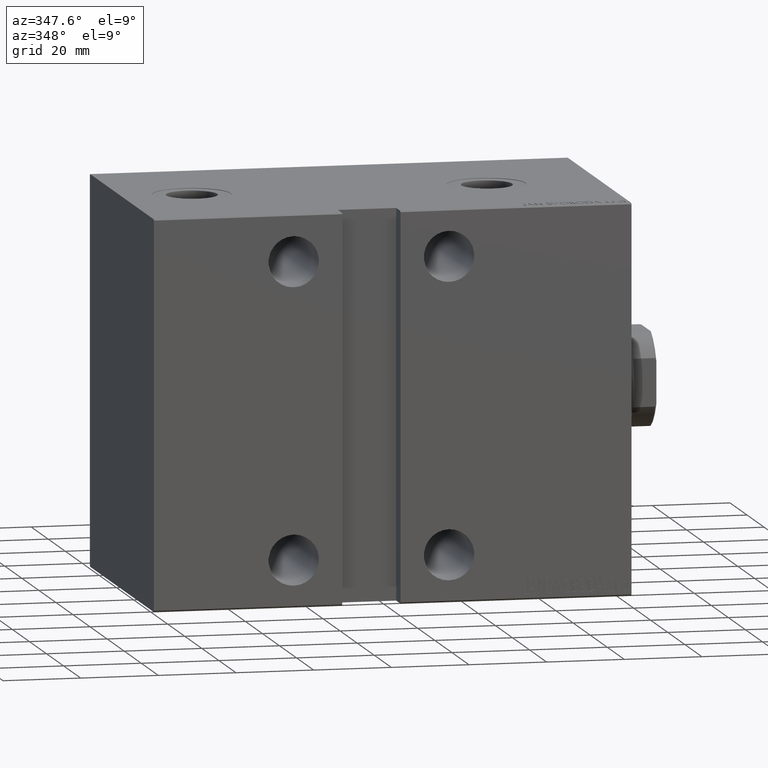
[diagram: clean part render]
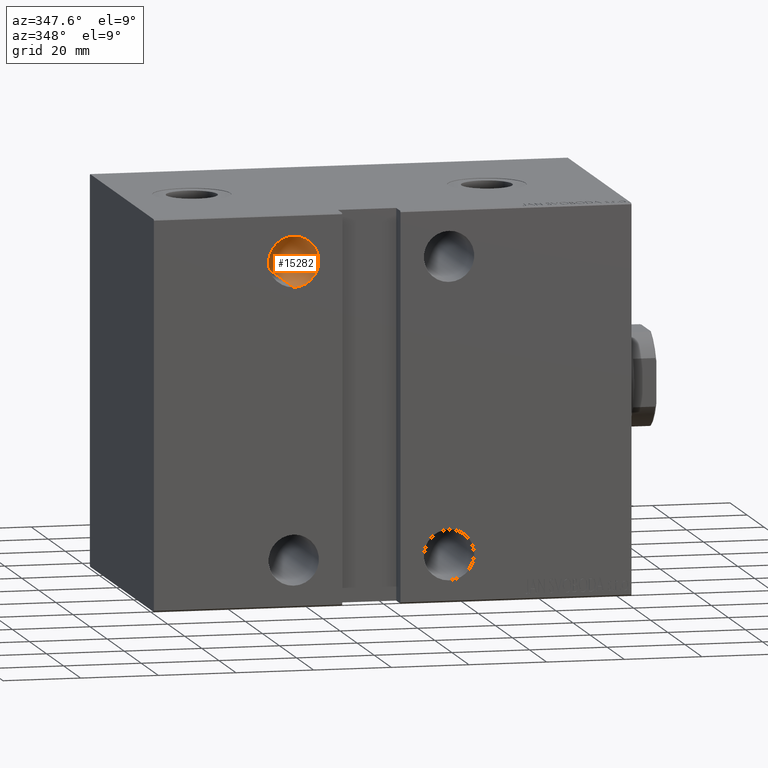
[diagram: same view with one face highlighted and labeled with its STEP entity id]
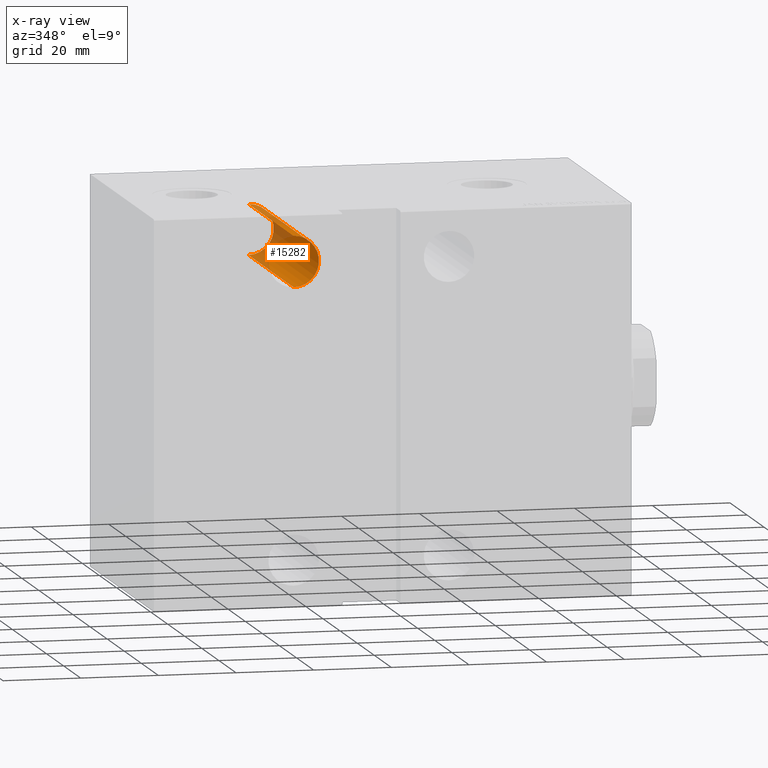
[diagram: x-ray of the same camera — body ghosted, the highlighted face saturated]
A machine part, auxiliary view. The second image highlights one B-rep face of the part: STEP entity #15282.
The next image is the same camera in x-ray: the body ghosted, the highlighted face saturated — about 25% of this face is hidden behind the body in this view.
In plain terms, the highlighted cylindrical surface (edge-blend (fillet) strip) has radius 6.5 mm, axis along (0, -1, 0).
Its self-contained STEP definition (entity closure, byte-faithful):
#1183 = ORIENTED_EDGE ( 'NONE', *, *, #9802, .F. ) ;
#2639 = LINE ( 'NONE', #18795, #2918 ) ;
#2918 = VECTOR ( 'NONE', #6137, 1000.000000000000000 ) ;
#4873 = CYLINDRICAL_SURFACE ( 'NONE', #34288, 6.500000000000005329 ) ;
#6137 = DIRECTION ( 'NONE',  ( -0.000000000000000000, 1.000000000000000000, 1.261617073437677752E-16 ) ) ;
#9802 = EDGE_CURVE ( 'NONE', #28279, #41254, #20183, .T. ) ;
#10983 = FACE_OUTER_BOUND ( 'NONE', #21247, .T. ) ;
#11313 = DIRECTION ( 'NONE',  ( -0.000000000000000000, 1.000000000000000000, 1.261617073437677752E-16 ) ) ;
#14252 = CARTESIAN_POINT ( 'NONE',  ( 87.00000000000001421, -37.50000000000003553, 37.99999999999999289 ) ) ;
#14577 = CARTESIAN_POINT ( 'NONE',  ( 87.00000000000001421, -37.50000000000003553, 31.49999999999998579 ) ) ;
#14798 = LINE ( 'NONE', #14577, #41393 ) ;
#15282 = ADVANCED_FACE ( 'NONE', ( #10983 ), #4873, .F. ) ;
#15400 = VERTEX_POINT ( 'NONE', #34377 ) ;
#15694 = ORIENTED_EDGE ( 'NONE', *, *, #16487, .F. ) ;
#16487 = EDGE_CURVE ( 'NONE', #16851, #28279, #2639, .T. ) ;
#16851 = VERTEX_POINT ( 'NONE', #33179 ) ;
#18785 = AXIS2_PLACEMENT_3D ( 'NONE', #36517, #22755, #36731 ) ;
#18795 = CARTESIAN_POINT ( 'NONE',  ( 87.00000000000001421, -37.50000000000003553, 44.50000000000000000 ) ) ;
#20183 = CIRCLE ( 'NONE', #18785, 6.499999999999999112 ) ;
#20267 = ORIENTED_EDGE ( 'NONE', *, *, #40569, .T. ) ;
#21247 = EDGE_LOOP ( 'NONE', ( #27711, #20267, #1183, #15694 ) ) ;
#22755 = DIRECTION ( 'NONE',  ( 0.000000000000000000, -1.000000000000000000, -1.387778780781445182E-16 ) ) ;
#23033 = CARTESIAN_POINT ( 'NONE',  ( 87.00000000000001421, 37.49999999999999289, 44.50000000000000000 ) ) ;
#24830 = CIRCLE ( 'NONE', #30429, 6.500000000000005329 ) ;
#27711 = ORIENTED_EDGE ( 'NONE', *, *, #37648, .F. ) ;
#28279 = VERTEX_POINT ( 'NONE', #23033 ) ;
#30429 = AXIS2_PLACEMENT_3D ( 'NONE', #36542, #33054, #42902 ) ;
#31309 = DIRECTION ( 'NONE',  ( -0.000000000000000000, 1.000000000000000000, 1.261617073437677752E-16 ) ) ;
#33054 = DIRECTION ( 'NONE',  ( -0.000000000000000000, 1.000000000000000000, -0.000000000000000000 ) ) ;
#33179 = CARTESIAN_POINT ( 'NONE',  ( 87.00000000000001421, -15.50000000000000000, 44.50000000000000000 ) ) ;
#34288 = AXIS2_PLACEMENT_3D ( 'NONE', #14252, #31309, #37868 ) ;
#34377 = CARTESIAN_POINT ( 'NONE',  ( 87.00000000000001421, -15.50000000000000000, 31.49999999999999289 ) ) ;
#36517 = CARTESIAN_POINT ( 'NONE',  ( 87.00000000000001421, 37.49999999999999289, 38.00000000000000000 ) ) ;
#36542 = CARTESIAN_POINT ( 'NONE',  ( 87.00000000000001421, -15.50000000000000000, 37.99999999999999289 ) ) ;
#36731 = DIRECTION ( 'NONE',  ( 0.000000000000000000, 0.000000000000000000, -1.000000000000000000 ) ) ;
#37572 = CARTESIAN_POINT ( 'NONE',  ( 87.00000000000001421, 37.49999999999999289, 31.50000000000000000 ) ) ;
#37648 = EDGE_CURVE ( 'NONE', #15400, #16851, #24830, .T. ) ;
#37868 = DIRECTION ( 'NONE',  ( 0.000000000000000000, 0.000000000000000000, 1.000000000000000000 ) ) ;
#40569 = EDGE_CURVE ( 'NONE', #15400, #41254, #14798, .T. ) ;
#41254 = VERTEX_POINT ( 'NONE', #37572 ) ;
#41393 = VECTOR ( 'NONE', #11313, 1000.000000000000000 ) ;
#42902 = DIRECTION ( 'NONE',  ( 0.000000000000000000, 0.000000000000000000, -1.000000000000000000 ) ) ;